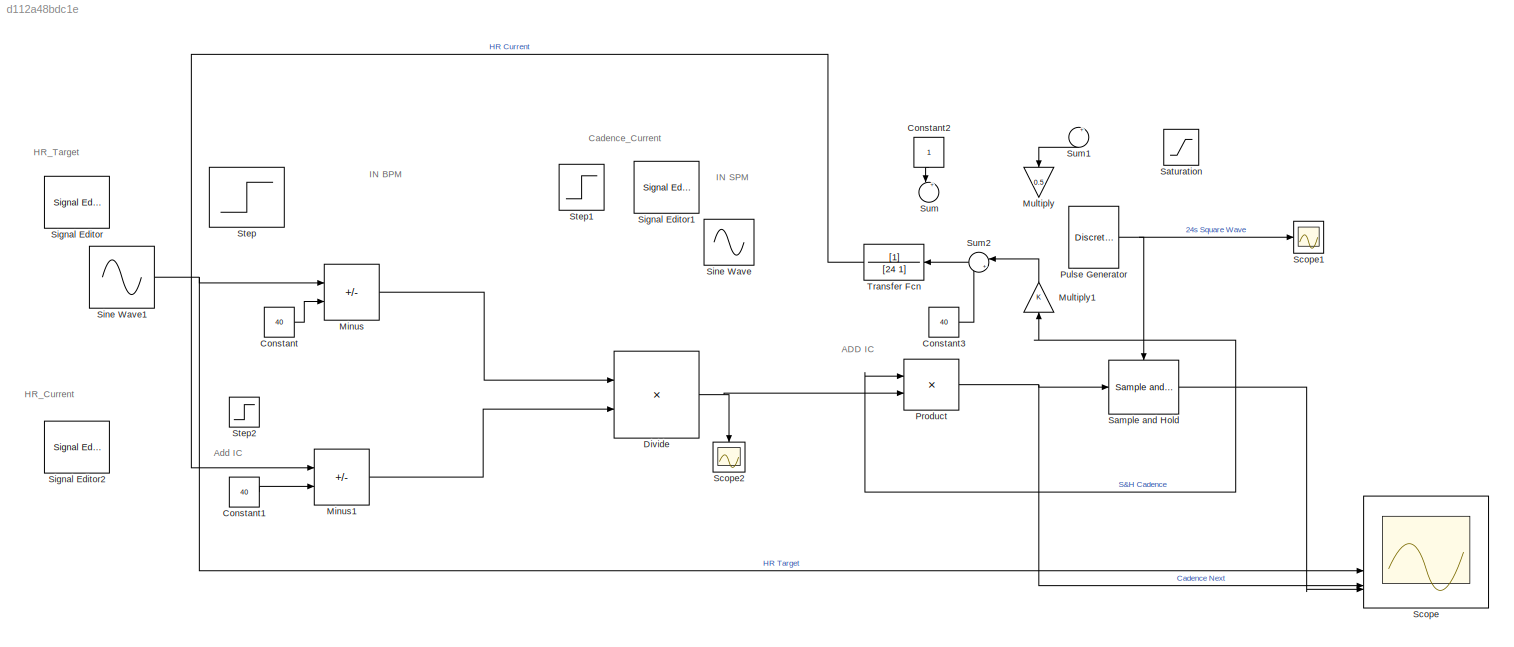
MODEL slx_d112a48bdc1e
KIND model
CONFIG AbsTol = auto
CONFIG EnableMultiTasking = off
CONFIG FixedStep = auto
CONFIG MaxStep = auto
CONFIG MinStep = auto
CONFIG RelTol = 1e-3
CONFIG SampleTimeConstraint = Unconstrained
CONFIG SolverName = VariableStepAuto
CONFIG StartTime = 0.0
CONFIG StopTime = 1000
BLOCK [Constant] Constant
  Value = 40
BLOCK [Constant] Constant1
  Value = 40
BLOCK [Constant] Constant2
  NameLocation = left
BLOCK [Constant] Constant3
  Value = 40
BLOCK [Product] Divide
  Inputs = */
BLOCK [Sum] Minus
  IconShape = rectangular
  Inputs = +-
BLOCK [Sum] Minus1
  IconShape = rectangular
  Inputs = +-
BLOCK [Gain] Multiply
  Gain = 0.5
  NameLocation = left
BLOCK [Gain] Multiply1
  NameLocation = right
BLOCK [Product] Product
BLOCK [DiscretePulseGenerator] Pulse Generator
  Period = 15
  PulseType = Time based
  PulseWidth = 10
BLOCK [Reference] Sample and Hold  REF=dspsigops/Sample
and Hold
  LibrarySourceBlock = dsphdlsupportsigops/Sample\nand Hold
  SourceBlock = dspsigops/Sample\nand Hold
  SourceType = Sample and Hold
BLOCK [Saturate] Saturation
  LowerLimit = 80
  UpperLimit = 200
BLOCK [Scope] Scope
  Floating = off
  NumInputPorts = 5
  ScopeSpecificationString = Simulink.scopes.TimeScopeBlockCfg('CurrentConfiguration', extmgr.ConfigurationSet(extmgr.Configuration('Core','General UI',true),extmgr.Configuration('Core','Source UI',true),extmgr.Configuration('Sources','WiredSimulink',true),extmgr.Configuration('Visuals','Time Domain',true,'SerializedDisplays',{struct('MinYLimReal','-0.00089','MaxYLimReal','0.00162','YLabelReal','','MinYLimMag','0.00000','MaxY...<+1464ch>
BLOCK [Scope] Scope1
  Floating = off
  NumInputPorts = 1
  ScopeSpecificationString = Simulink.scopes.TimeScopeBlockCfg('CurrentConfiguration', extmgr.ConfigurationSet(extmgr.Configuration('Core','General UI',true),extmgr.Configuration('Core','Source UI',true),extmgr.Configuration('Sources','WiredSimulink',true,'DataLoggingVariableName','ScopeData1'),extmgr.Configuration('Visuals','Time Domain',true,'SerializedDisplays',{struct('MinYLimReal','-0.125','MaxYLimReal','1.125','YLabelRe...<+1417ch>
BLOCK [Scope] Scope2
  Floating = off
  NameLocation = left
  NumInputPorts = 1
  ScopeSpecificationString = Simulink.scopes.TimeScopeBlockCfg('CurrentConfiguration', extmgr.ConfigurationSet(extmgr.Configuration('Core','General UI',true),extmgr.Configuration('Core','Source UI',true),extmgr.Configuration('Sources','WiredSimulink',true,'DataLoggingVariableName','ScopeData2'),extmgr.Configuration('Visuals','Time Domain',true,'SerializedDisplays',{struct('MinYLimReal','-14904104542110496.00000','MaxYLimReal'...<+1521ch>
BLOCK [Reference] Signal Editor  REF=SignalEditorBlockLib/Signal Editor
  LibrarySourceBlock = simulink/Sources/Signal Editor
  SourceBlock = SignalEditorBlockLib/Signal Editor
  SourceType = SignalEditor
  UserDataPersistent = on
BLOCK [Reference] Signal Editor1  REF=SignalEditorBlockLib/Signal Editor
  LibrarySourceBlock = simulink/Sources/Signal Editor
  SourceBlock = SignalEditorBlockLib/Signal Editor
  SourceType = SignalEditor
  UserDataPersistent = on
BLOCK [Reference] Signal Editor2  REF=SignalEditorBlockLib/Signal Editor
  LibrarySourceBlock = simulink/Sources/Signal Editor
  SourceBlock = SignalEditorBlockLib/Signal Editor
  SourceType = SignalEditor
  UserDataPersistent = on
BLOCK [Sin] Sine Wave
  Amplitude = 20
  Bias = 120
  Frequency = 0.01
  SampleTime = 0
BLOCK [Sin] Sine Wave1
  Amplitude = 20
  Bias = 120
  Frequency = 0.01
  SampleTime = 0
BLOCK [Step] Step
  After = 140
  SampleTime = 0
BLOCK [Step] Step1
  After = 100
  SampleTime = 0
BLOCK [Step] Step2
  SampleTime = 0
BLOCK [Sum] Sum
  Inputs = |++
  NameLocation = left
BLOCK [Sum] Sum1
  Inputs = |++
  NameLocation = left
BLOCK [Sum] Sum2
  Inputs = |++
  NameLocation = top
BLOCK [TransferFcn] Transfer Fcn
  Denominator = [24 1]
  NameLocation = top
ANNOTATION (root): IN BPM
ANNOTATION (root): ADD IC
ANNOTATION (root): Add IC
ANNOTATION (root): Cadence_Current
ANNOTATION (root): HR_Current
ANNOTATION (root): HR_Target
ANNOTATION (root): IN SPM
LINE Constant1:1 -> Minus1:2
LINE Constant2:1 -> Sum:1
LINE Constant3:1 -> Sum2:2
LINE Constant:1 -> Minus:2
NET Divide:1 -> Product:2, Scope2:1
LINE Minus1:1 -> Divide:2
LINE Minus:1 -> Divide:1
LINE Multiply1:1 -> Sum2:1
NET Product:1 -> Sample and Hold:1, Scope:4
NET Pulse Generator:1 -> Sample and Hold:trigger, Scope1:1
NET Sample and Hold:1 -> Multiply1:1, Product:1, Scope:5
NET Sine Wave1:1 -> Minus:1, Scope:2
LINE Sum1:1 -> Multiply:1
LINE Sum2:1 -> Transfer Fcn:1
LINE Transfer Fcn:1 -> Minus1:1
note: NET lines group one-source signal fan-out (src -> all destinations, sorted); 1:1 wires keep LINE
